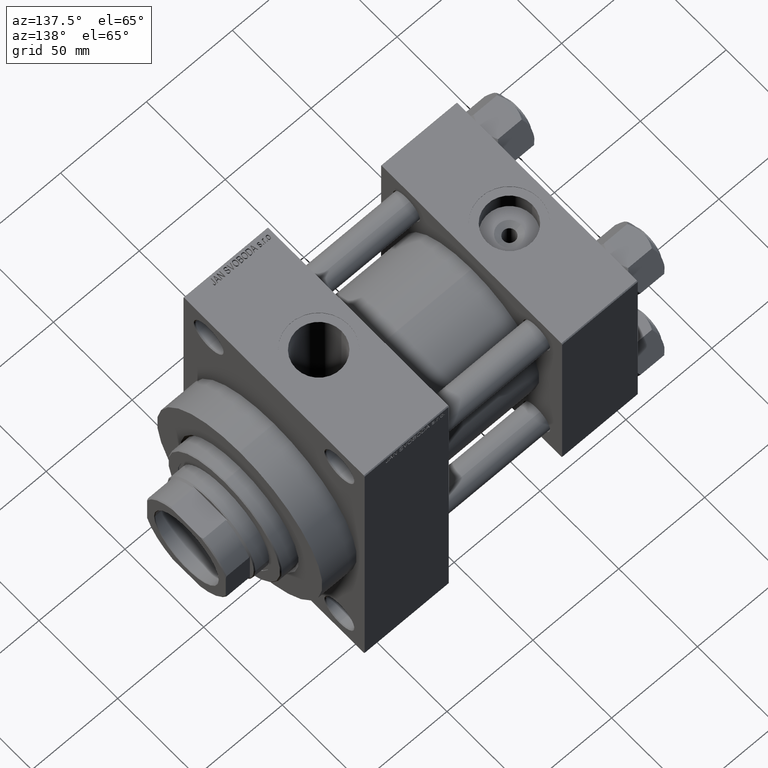
[diagram: clean part render]
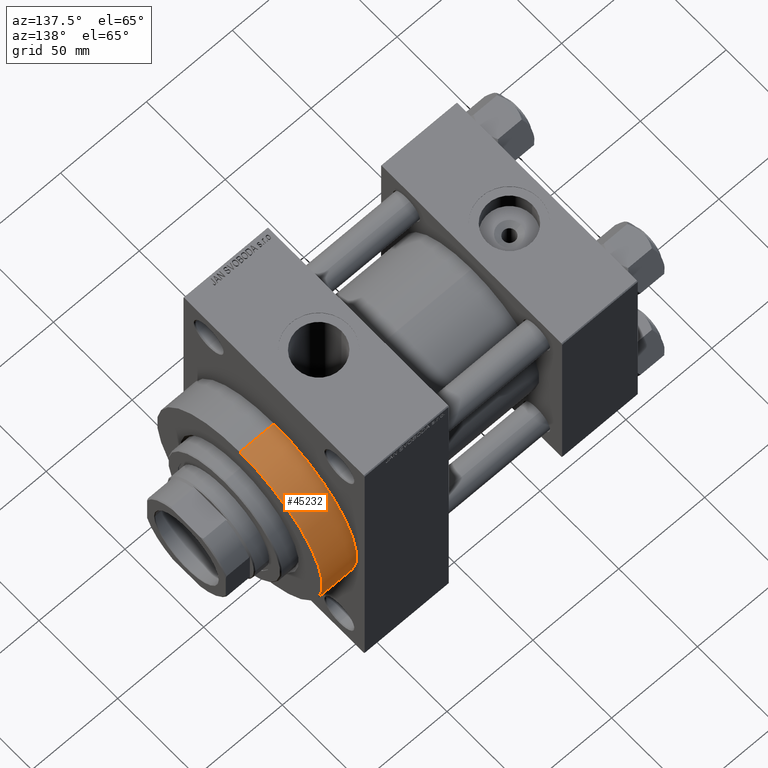
[diagram: same view with one face highlighted and labeled with its STEP entity id]
A machine part, auxiliary view. The second image highlights one B-rep face of the part: STEP entity #45232.
In plain terms, the highlighted cylindrical surface (partial cylindrical patch) has radius 52.5 mm, axis along (-1, -0, -0).
Its self-contained STEP definition (entity closure, byte-faithful):
#5197 = ORIENTED_EDGE ( 'NONE', *, *, #7025, .T. ) ;
#6173 = CARTESIAN_POINT ( 'NONE',  ( 179.0000000000000000, 0.000000000000000000, 0.000000000000000000 ) ) ;
#6209 = VERTEX_POINT ( 'NONE', #46588 ) ;
#7025 = EDGE_CURVE ( 'NONE', #11123, #41233, #46943, .T. ) ;
#10017 = CARTESIAN_POINT ( 'NONE',  ( 159.0000000000000000, 6.429395695523604744E-15, -52.50000000000000711 ) ) ;
#10510 = FACE_OUTER_BOUND ( 'NONE', #40568, .T. ) ;
#11123 = VERTEX_POINT ( 'NONE', #10017 ) ;
#11342 = ORIENTED_EDGE ( 'NONE', *, *, #21102, .T. ) ;
#12457 = CARTESIAN_POINT ( 'NONE',  ( 179.0000000000000000, 6.429395695523604744E-15, -52.50000000000000711 ) ) ;
#15533 = VECTOR ( 'NONE', #44688, 1000.000000000000000 ) ;
#17745 = DIRECTION ( 'NONE',  ( 0.000000000000000000, 0.000000000000000000, 1.000000000000000000 ) ) ;
#18229 = DIRECTION ( 'NONE',  ( -1.000000000000000000, -0.000000000000000000, -0.000000000000000000 ) ) ;
#19810 = CARTESIAN_POINT ( 'NONE',  ( 179.0000000000000000, 0.000000000000000000, 52.50000000000000711 ) ) ;
#21102 = EDGE_CURVE ( 'NONE', #43351, #11123, #32082, .T. ) ;
#21445 = CARTESIAN_POINT ( 'NONE',  ( 179.0000000000000000, 6.429395695523604744E-15, -52.50000000000000711 ) ) ;
#26303 = DIRECTION ( 'NONE',  ( 1.000000000000000000, 0.000000000000000000, 0.000000000000000000 ) ) ;
#26596 = LINE ( 'NONE', #19810, #15533 ) ;
#26891 = AXIS2_PLACEMENT_3D ( 'NONE', #33332, #26303, #36709 ) ;
#32082 = LINE ( 'NONE', #21445, #36035 ) ;
#33017 = EDGE_CURVE ( 'NONE', #6209, #41233, #26596, .T. ) ;
#33332 = CARTESIAN_POINT ( 'NONE',  ( 159.0000000000000000, 0.000000000000000000, 0.000000000000000000 ) ) ;
#34674 = DIRECTION ( 'NONE',  ( 1.000000000000000000, 0.000000000000000000, 0.000000000000000000 ) ) ;
#35034 = ORIENTED_EDGE ( 'NONE', *, *, #33017, .F. ) ;
#36035 = VECTOR ( 'NONE', #43168, 1000.000000000000000 ) ;
#36347 = CARTESIAN_POINT ( 'NONE',  ( 179.0000000000000000, 0.000000000000000000, 0.000000000000000000 ) ) ;
#36709 = DIRECTION ( 'NONE',  ( 0.000000000000000000, 0.000000000000000000, -1.000000000000000000 ) ) ;
#40473 = AXIS2_PLACEMENT_3D ( 'NONE', #36347, #18229, #17745 ) ;
#40568 = EDGE_LOOP ( 'NONE', ( #47618, #11342, #5197, #35034 ) ) ;
#41233 = VERTEX_POINT ( 'NONE', #42588 ) ;
#41908 = DIRECTION ( 'NONE',  ( 0.000000000000000000, 0.000000000000000000, -1.000000000000000000 ) ) ;
#42588 = CARTESIAN_POINT ( 'NONE',  ( 159.0000000000000000, 0.000000000000000000, 52.50000000000000711 ) ) ;
#42763 = AXIS2_PLACEMENT_3D ( 'NONE', #6173, #34674, #41908 ) ;
#43168 = DIRECTION ( 'NONE',  ( -1.000000000000000000, -0.000000000000000000, -0.000000000000000000 ) ) ;
#43351 = VERTEX_POINT ( 'NONE', #12457 ) ;
#43559 = CIRCLE ( 'NONE', #42763, 52.50000000000000711 ) ;
#44688 = DIRECTION ( 'NONE',  ( -1.000000000000000000, -0.000000000000000000, -0.000000000000000000 ) ) ;
#45139 = EDGE_CURVE ( 'NONE', #43351, #6209, #43559, .T. ) ;
#45232 = ADVANCED_FACE ( 'NONE', ( #10510 ), #46708, .T. ) ;
#46588 = CARTESIAN_POINT ( 'NONE',  ( 179.0000000000000000, 0.000000000000000000, 52.50000000000000711 ) ) ;
#46708 = CYLINDRICAL_SURFACE ( 'NONE', #40473, 52.50000000000000711 ) ;
#46943 = CIRCLE ( 'NONE', #26891, 52.50000000000000711 ) ;
#47618 = ORIENTED_EDGE ( 'NONE', *, *, #45139, .F. ) ;